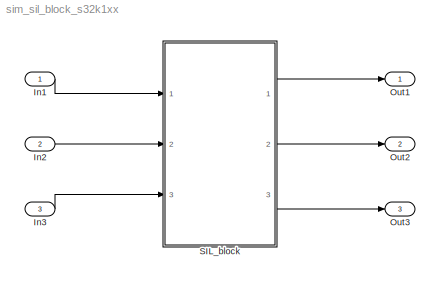
MODEL sim_sil_block_s32k1xx
KIND model
CONFIG InitFcn = mbd_s32k_consistency_checks(bdroot(gcs));
BLOCK [Inport] In1
  IconDisplay = Port number
  OutDataTypeStr = single
  SID = 1
BLOCK [Inport] In2
  IconDisplay = Port number
  OutDataTypeStr = single
  Port = 2
  SID = 2
BLOCK [Inport] In3
  IconDisplay = Port number
  OutDataTypeStr = int16
  Port = 3
  SID = 3
BLOCK [Outport] Out1
  IconDisplay = Port number
  SID = 15
BLOCK [Outport] Out2
  IconDisplay = Port number
  Port = 2
  SID = 16
BLOCK [Outport] Out3
  IconDisplay = Port number
  Port = 3
  SID = 17
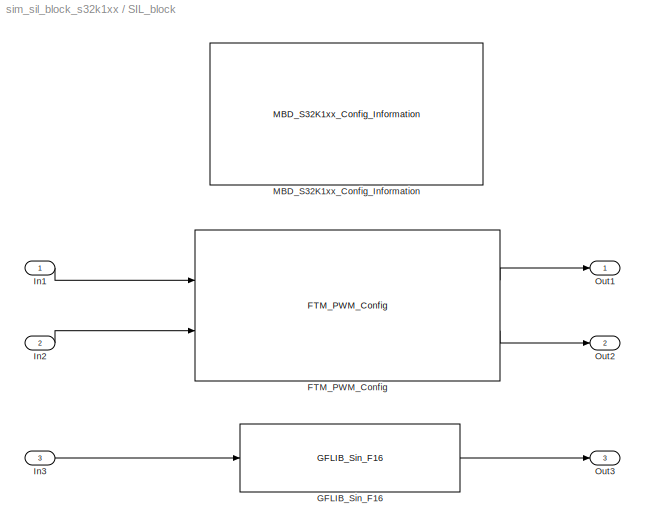
BLOCK [SubSystem] SIL_block
  Ports = [3, 3]
  RequestExecContextInheritance = off
  SID = 4
  Variant = off
BLOCK [Reference] SIL_block/FTM_PWM_Config  REF=mbd_s32k1xx_ec_toolbox/Motor Control Blocks/FTM Blocks/FTM_PWM_Config
  Ports = [2, 2]
  Priority = 1
  SID = 22
  SourceBlock = mbd_s32k1xx_ec_toolbox/Motor Control Blocks/FTM Blocks/FTM_PWM_Config
  SourceType = FTM_s32k_pwm_config_block
  chTrigger0 = off
  chTrigger1 = off
  chTrigger2 = off
  chTrigger3 = off
  chTrigger4 = off
  chTrigger5 = off
  chTrigger6 = off
  chTrigger7 = off
  chan0En = on
  chan0Type = Independent
  chan2En = off
  chan2Type = Independent
  chan4En = off
  chan4Type = Independent
  chan6En = off
  chan6Type = Independent
  chnMatch0 = off
  chnMatch1 = off
  chnMatch2 = off
  chnMatch3 = off
  chnMatch4 = off
  chnMatch5 = off
  chnMatch6 = off
  chnMatch7 = off
  deadtimeNs = 0
  deadtimePrescaler = Divide by 1
  deadtimeTicks = 0
  deadtimeUnits = Nanoseconds
  dutyCycleCh0 = 0.26
  dutyCycleCh1 = 0.25
  dutyCycleCh2 = 0.25
  dutyCycleCh3 = 0.25
  dutyCycleCh4 = 0.25
  dutyCycleCh5 = 0.25
  dutyCycleCh6 = 0.25
  dutyCycleCh7 = 0.25
  dutyCycleSim = on
  fault_disen_0 = off
  fault_disen_1 = off
  fault_disen_2 = off
  fault_disen_3 = off
  fault_filter_0 = off
  fault_filter_1 = off
  fault_filter_2 = off
  fault_filter_3 = off
  fault_pin_0 = None
  fault_pin_1 = None
  fault_pin_2 = None
  fault_pin_3 = None
  fault_polarity_0 = Active High
  fault_polarity_1 = Active high
  fault_polarity_2 = Active high
  fault_polarity_3 = Active high
  ftmMode = Edge-Aligned PWM
  ftmModule = 0
  ftmPeriod = 2000
  ftmPrescaler = Divide by 1
  ftmPwmUnits = Hz
  ftmSourceClock = 80 MHz
  initTrigger = off
  mcuTargetUpdate = on
  outFrequency = 40000
  outputComplem0 = Main duplicated
  outputComplem2 = Main duplicated
  outputComplem4 = Main duplicated
  outputComplem6 = Main duplicated
  outputLevel0 = Low
  outputLevel1 = Low
  outputLevel2 = Low
  outputLevel3 = Low
  outputLevel4 = Low
  outputLevel5 = Low
  outputLevel6 = Low
  outputLevel7 = Low
  pinFtmCh0 = PTB12: [FTM0_CH0 | FTM Channel]
  pinFtmCh1 = PTB13: [FTM0_CH1 | FTM Channel]
  pinFtmCh2 = PTB14: [FTM0_CH2 | FTM Channel]
  pinFtmCh3 = None
  pinFtmCh4 = PTB4: [FTM0_CH4 | FTM Channel]
  pinFtmCh5 = None
  pinFtmCh6 = PTA17: [FTM0_CH6 | FTM Channel]
  pinFtmCh7 = None
  pinPolCh0 = Active Low
  pinPolCh1 = Active Low
  pinPolCh2 = Active Low
  pinPolCh3 = Active Low
  pinPolCh4 = Active Low
  pinPolCh5 = Active Low
  pinPolCh6 = Active Low
  pinPolCh7 = Active Low
  pwmFaultClearing = Fault control disabled
  pwmFaultFilterValue = 0
  pwmFaultInterrupt = off
  pwmFaultPinState = Safe Value
  pwmFaultPriority = 15
  pwmFaultProtection = off
  pwmSyncAutoClear = on
  pwmSyncCounterInitial = System Clock
  pwmSyncHwRouting = TRGMUX_FTM7
  pwmSyncInvert = System Clock
  pwmSyncMaxLoad = on
  pwmSyncMinLoad = on
  pwmSyncOutControl = System Clock
  pwmSyncOutMask = System Clock
  pwmSyncPoints = Update now
  pwmSyncTrg = Software trigger
  pwmSyncTrg0 = off
  pwmSyncTrg1 = off
  pwmSyncTrg2 = off
  reloadEnable = off
  reloadFrequency = 0
  reloadHCR = 0
  reloadHalfCycle = off
  reloadPriority = 15
  showAdvOpt = on
  startAfterInit = on
  swcontrol_enable = off
BLOCK [Reference] SIL_block/GFLIB_Sin_F16  REF=ammclib_bam_s32k14x/GFLIB/bam_f16/GFLIB_Sin_F16  (lib defined in mdl_f341c9dd7fd9)
  Ports = [1, 1]
  SID = 23
  SourceBlock = ammclib_bam_s32k14x/GFLIB/bam_f16/GFLIB_Sin_F16
  SourceType = GFLIB_Sin_F16
BLOCK [Inport] SIL_block/In1
  IconDisplay = Port number
  OutDataTypeStr = single
  SID = 19
BLOCK [Inport] SIL_block/In2
  IconDisplay = Port number
  OutDataTypeStr = single
  Port = 2
  SID = 20
BLOCK [Inport] SIL_block/In3
  IconDisplay = Port number
  OutDataTypeStr = int16
  Port = 3
  SID = 21
BLOCK [Reference] SIL_block/MBD_S32K1xx_Config_Information  REF=mbd_s32k1xx_ec_toolbox/MBD_S32K1xx_Config_Information
  ADC_PcrCheckEnDis = on
  AMMCLIB_PcrCheckEnDis = on
  CMP_PcrCheckEnDis = on
  CSEc_PcrCheckEnDis = on
  ConfigParams_PcrCheckEnDis = on
  FM_PcrCheckEnDis = on
  FTM_Dual_Edge_Inputs_PcrCheckEnDis = on
  FTM_Hall_Sensor_Inputs_PcrCheckEnDis = on
  FTM_Input_Edge_Inputs_PcrCheckEnDis = on
  FTM_PWM_PcrCheckEnDis = on
  FTM_Quadrature_Inputs_PcrCheckEnDis = on
  FlexCAN_PcrCheckEnDis = on
  FlexIO_PcrCheckEnDis = on
  GPIO_InputPcrCheckEnDis = on
  GPIO_OutputPcrCheckEnDis = on
  LIN_PcrCheckEnDis = on
  LPI2C_PcrCheckEnDis = on
  LPSPI_PcrCheckEnDis = on
  LPTMR_PcrCheckEnDis = on
  LPUART_PcrCheckEnDis = on
  ModelRef_PcrCheckEnDis = on
  PDB0_PcrCheckEnDis = on
  PIT_PcrCheckEnDis = on
  Ports = []
  Profile_PcrCheckEnDis = on
  RTC_PcrCheckEnDis = on
  SBC_PcrCheckEnDis = on
  SID = 27
  SourceBlock = mbd_s32k1xx_ec_toolbox/MBD_S32K1xx_Config_Information
  SourceType = MBDTBX_EC_S32K
  WDOG_PcrCheckEnDis = on
  config_params = []
  disp_str = Target : S32K144-64KB_SRAM\nPackage : 100-pin\nSystem clock : 80 MHz\nXTAL clock : External 8 MHz\nCompiler : GCC\nTarget Type : FLASH\nProcessor-In-Loop : (COM4, 115200, OpenSDA: D)\nStep Tick Interrupt Priority : 15
  ds_import_enable = off
  eDMA_PcrCheckEnDis = on
  gcc_target_assemble_opts = -mcpu=cortex-m4 -mthumb -mfloat-abi=hard -mfpu=fpv4-sp-d16 -g
  gcc_target_compile_opts = -mcpu=cortex-m4 -mthumb -mfloat-abi=hard -mfpu=fpv4-sp-d16 -O1 -g -gstrict-dwarf
  gcc_target_default_lcf = on
  gcc_target_link_opts = -mcpu=cortex-m4 -mthumb -mfloat-abi=hard -mfpu=fpv4-sp-d16
  gcc_target_user_lcf = S32K144_48_flash.ld
  ghs_target_assemble_opts = -cpu=cortexm4f -fpu=vfpv4_d16
  ghs_target_compile_opts = -cpu=cortexm4f -thumb -DARM_MATH_CM4 -fpu=vfpv4_d16 -fsingle -Ogeneral -Wundef -Wimplicit-int -Wshadow -Wtrigraphs --no_commons --gnu_asm -gnu99 -gdwarf-2 -G
  ghs_target_default_lcf = off
  ghs_target_link_opts = -cpu=cortexm4f -thumb -fpu=vfpv4_d16
  ghs_target_user_lcf = S32K144_48_flash.ld
  iar_target_assemble_opts = --cpu Cortex-M4F --thumb --fpu VFPv4_sp
  iar_target_compile_opts = --cpu=Cortex-M4F --thumb --fpu=VFPv4_sp -Ol -e --debug --dlib_config normal
  iar_target_default_lcf = off
  iar_target_link_opts = --no_exceptions --vfe --inline
  iar_target_user_lcf = S32K144_48_flash.icf
  mbdt_ver = 0
  mcu_steptick_prio = 0
  mcu_steptick_timer = LPIT Channel 0
  mcu_system_clock_freq = 80
  mcu_target_name = S32K144
  mcu_target_package = 64-LQFP
  mcu_target_sram_size = 48KB
  mcu_xtal_freq = External 8
  pil_download_enable = on
  pil_download_rate = 38400
  pil_opensda_drive = Custom
  pil_opensda_drive_custom = D
  pil_uart_instance = 0
  pil_uart_rx = PTC6: [LPUART1_RX | Receive]
  pil_uart_tx = PTC7: [LPUART1_TX | Transmit]
  rbl_com_port = Custom
  rbl_com_port_custom = COM1
  rbl_download_enable = off
  rbl_download_interface = OpenSDA
  rbl_restart_request = off
  rbl_start_delay = 5000000
  target_compiler = GCC
  target_memory = FLASH
BLOCK [Outport] SIL_block/Out1
  IconDisplay = Port number
  SID = 24
BLOCK [Outport] SIL_block/Out2
  IconDisplay = Port number
  Port = 2
  SID = 25
BLOCK [Outport] SIL_block/Out3
  IconDisplay = Port number
  Port = 3
  SID = 26
LINE In1:1 -> SIL_block:1
LINE In2:1 -> SIL_block:2
LINE In3:1 -> SIL_block:3
LINE SIL_block/FTM_PWM_Config:1 -> SIL_block/Out1:1
LINE SIL_block/FTM_PWM_Config:2 -> SIL_block/Out2:1
LINE SIL_block/GFLIB_Sin_F16:1 -> SIL_block/Out3:1
LINE SIL_block/In1:1 -> SIL_block/FTM_PWM_Config:1
LINE SIL_block/In2:1 -> SIL_block/FTM_PWM_Config:2
LINE SIL_block/In3:1 -> SIL_block/GFLIB_Sin_F16:1
LINE SIL_block:1 -> Out1:1
LINE SIL_block:2 -> Out2:1
LINE SIL_block:3 -> Out3:1
